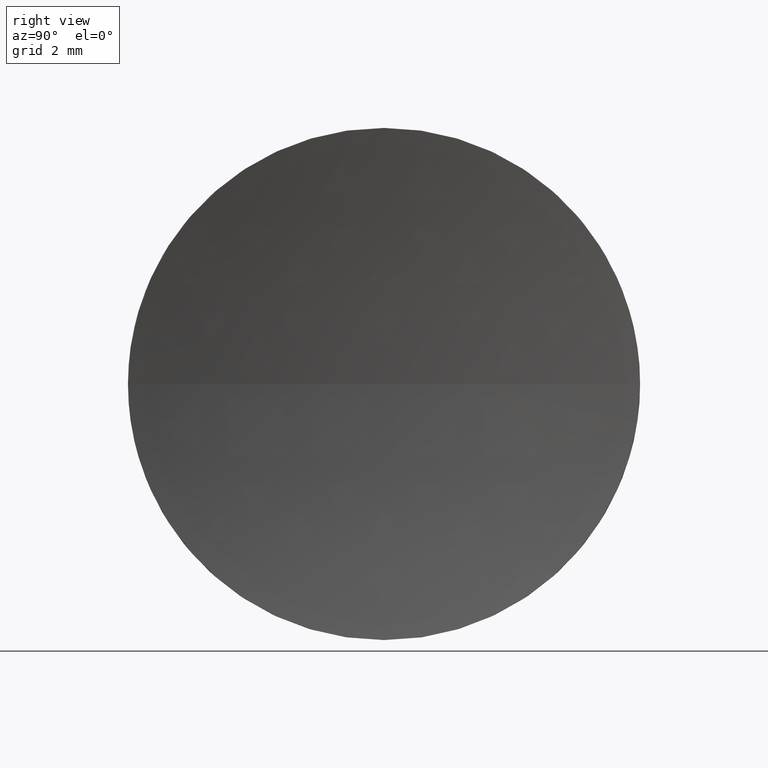
[diagram: clean part render]
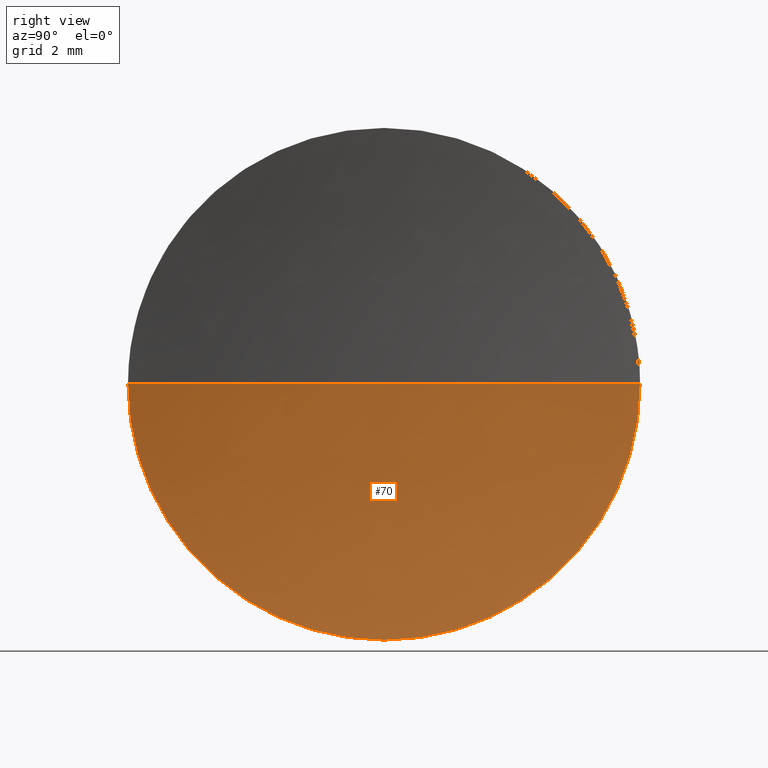
[diagram: same view with one face highlighted and labeled with its STEP entity id]
A machine part, right view. The second image highlights one B-rep face of the part: STEP entity #70.
In plain terms, the highlighted spherical surface has radius 25.7551 mm.
Its self-contained STEP definition (entity closure, byte-faithful):
#5 = AXIS2_PLACEMENT_3D ( 'NONE', #44, #24, #114 ) ;
#16 = VERTEX_POINT ( 'NONE', #76 ) ;
#19 = DIRECTION ( 'NONE',  ( 0.0000000000000000000, 0.0000000000000000000, 1.000000000000000000 ) ) ;
#20 = AXIS2_PLACEMENT_3D ( 'NONE', #181, #19, #39 ) ;
#21 = CARTESIAN_POINT ( 'NONE',  ( 46.30958549791029800, 26.08904114919495900, 0.0000000000000000000 ) ) ;
#24 = DIRECTION ( 'NONE',  ( -1.000000000000000000, -0.0000000000000000000, -0.0000000000000000000 ) ) ;
#30 = CARTESIAN_POINT ( 'NONE',  ( 46.30958549791029800, 21.08904114919496200, 0.0000000000000000000 ) ) ;
#31 = ORIENTED_EDGE ( 'NONE', *, *, #93, .T. ) ;
#39 = DIRECTION ( 'NONE',  ( 0.0000000000000000000, -1.000000000000000000, 0.0000000000000000000 ) ) ;
#44 = CARTESIAN_POINT ( 'NONE',  ( 46.30958549791029800, 26.08904114919495900, 0.0000000000000000000 ) ) ;
#48 = FACE_OUTER_BOUND ( 'NONE', #105, .T. ) ;
#51 = AXIS2_PLACEMENT_3D ( 'NONE', #54, #81, #170 ) ;
#54 = CARTESIAN_POINT ( 'NONE',  ( 71.57467329231487000, 26.08904114919495900, 0.0000000000000000000 ) ) ;
#62 = VERTEX_POINT ( 'NONE', #143 ) ;
#65 = EDGE_CURVE ( 'NONE', #150, #62, #78, .T. ) ;
#69 = CIRCLE ( 'NONE', #51, 25.75509000681168500 ) ;
#70 = ADVANCED_FACE ( 'NONE', ( #48 ), #73, .F. ) ;
#71 = EDGE_CURVE ( 'NONE', #79, #150, #124, .T. ) ;
#73 = SPHERICAL_SURFACE ( 'NONE', #20, 25.75509000681168500 ) ;
#75 = DIRECTION ( 'NONE',  ( -1.000000000000000000, 0.0000000000000000000, 0.0000000000000000000 ) ) ;
#76 = CARTESIAN_POINT ( 'NONE',  ( 46.30958549791029800, 31.08904114919495500, 6.123233995736764300E-016 ) ) ;
#78 = CIRCLE ( 'NONE', #180, 25.75509000681168500 ) ;
#79 = VERTEX_POINT ( 'NONE', #127 ) ;
#81 = DIRECTION ( 'NONE',  ( 0.0000000000000000000, -1.224646799147353200E-016, 1.000000000000000000 ) ) ;
#93 = EDGE_CURVE ( 'NONE', #16, #62, #69, .T. ) ;
#105 = EDGE_LOOP ( 'NONE', ( #129, #31, #138, #140 ) ) ;
#106 = DIRECTION ( 'NONE',  ( 0.0000000000000000000, 0.0000000000000000000, 1.000000000000000000 ) ) ;
#107 = CIRCLE ( 'NONE', #5, 5.000000000000000900 ) ;
#114 = DIRECTION ( 'NONE',  ( 0.0000000000000000000, 0.0000000000000000000, 1.000000000000000000 ) ) ;
#120 = EDGE_CURVE ( 'NONE', #16, #79, #107, .T. ) ;
#124 = CIRCLE ( 'NONE', #167, 5.000000000000000900 ) ;
#127 = CARTESIAN_POINT ( 'NONE',  ( 46.30958549791029800, 26.08904114919495900, -5.000000000000000900 ) ) ;
#129 = ORIENTED_EDGE ( 'NONE', *, *, #120, .F. ) ;
#130 = DIRECTION ( 'NONE',  ( -1.000000000000000000, -0.0000000000000000000, -0.0000000000000000000 ) ) ;
#138 = ORIENTED_EDGE ( 'NONE', *, *, #65, .F. ) ;
#140 = ORIENTED_EDGE ( 'NONE', *, *, #71, .F. ) ;
#143 = CARTESIAN_POINT ( 'NONE',  ( 45.81958328550318500, 26.08904114919495900, 0.0000000000000000000 ) ) ;
#150 = VERTEX_POINT ( 'NONE', #30 ) ;
#154 = CARTESIAN_POINT ( 'NONE',  ( 71.57467329231487000, 26.08904114919495900, 0.0000000000000000000 ) ) ;
#167 = AXIS2_PLACEMENT_3D ( 'NONE', #21, #130, #106 ) ;
#170 = DIRECTION ( 'NONE',  ( 0.0000000000000000000, -1.000000000000000000, -1.224646799147353200E-016 ) ) ;
#179 = DIRECTION ( 'NONE',  ( 0.0000000000000000000, 0.0000000000000000000, -1.000000000000000000 ) ) ;
#180 = AXIS2_PLACEMENT_3D ( 'NONE', #154, #179, #75 ) ;
#181 = CARTESIAN_POINT ( 'NONE',  ( 71.57467329231487000, 26.08904114919495900, 0.0000000000000000000 ) ) ;